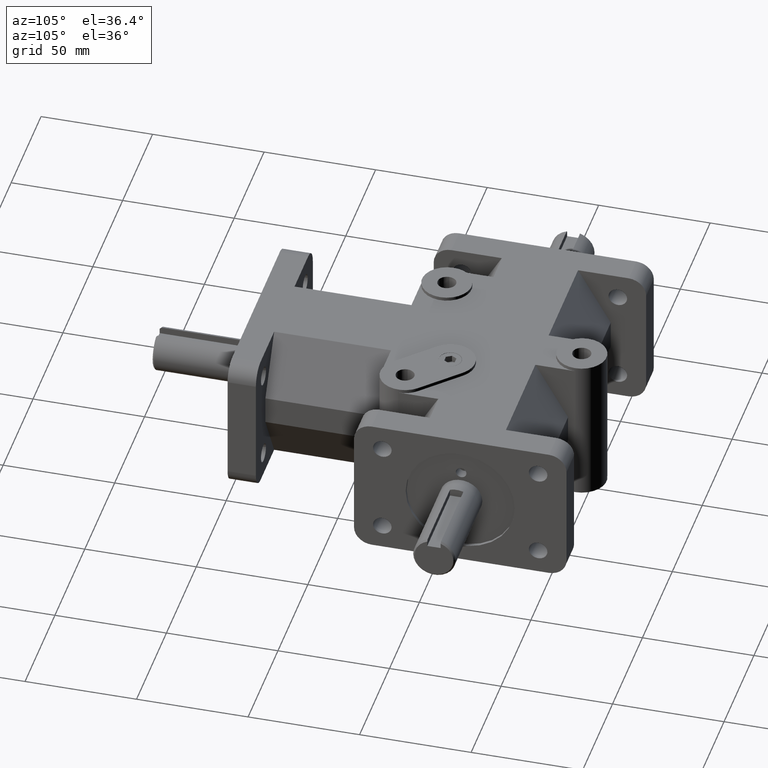
[diagram: clean part render]
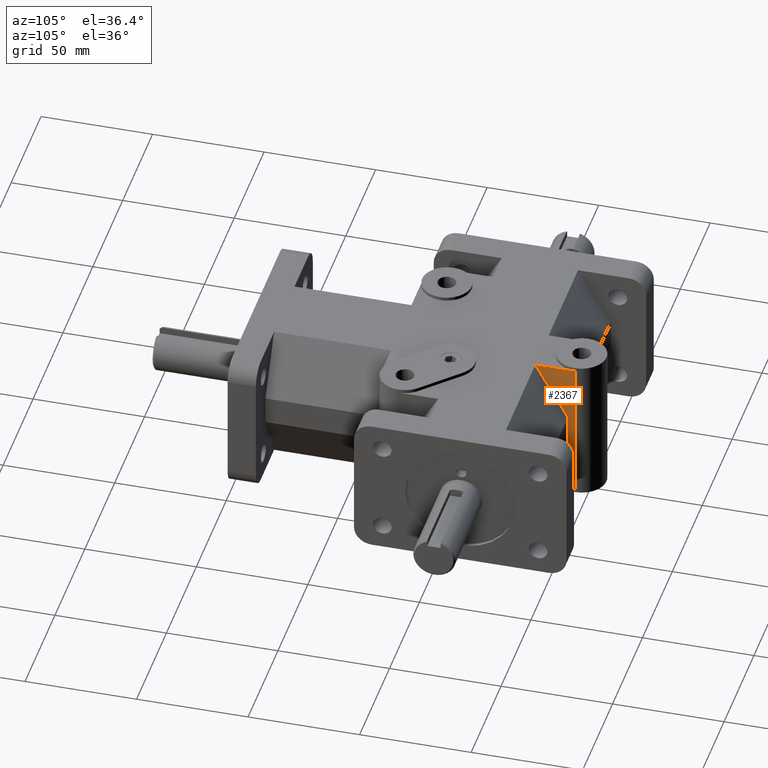
[diagram: same view with one face highlighted and labeled with its STEP entity id]
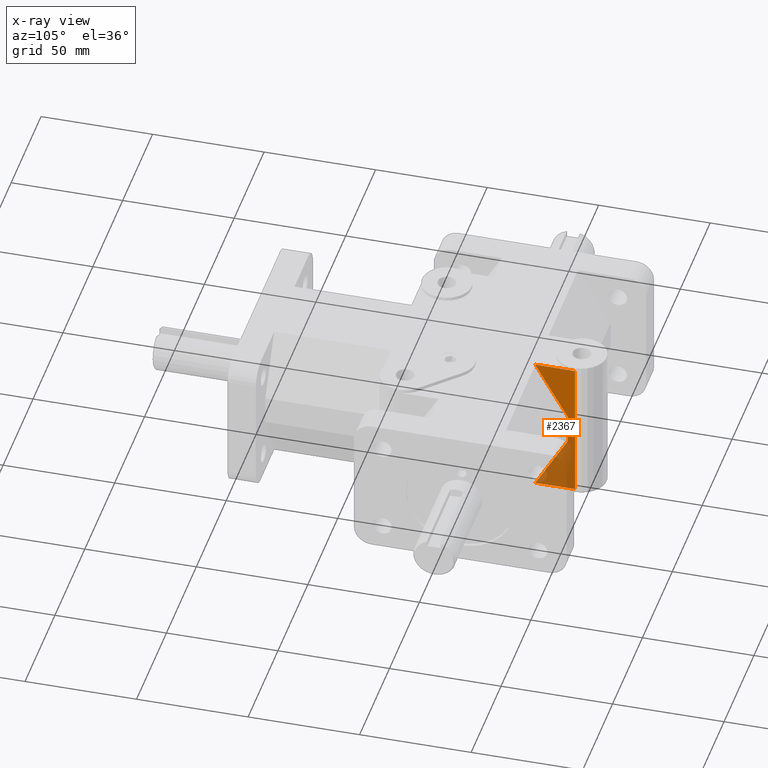
[diagram: x-ray of the same camera — body ghosted, the highlighted face saturated]
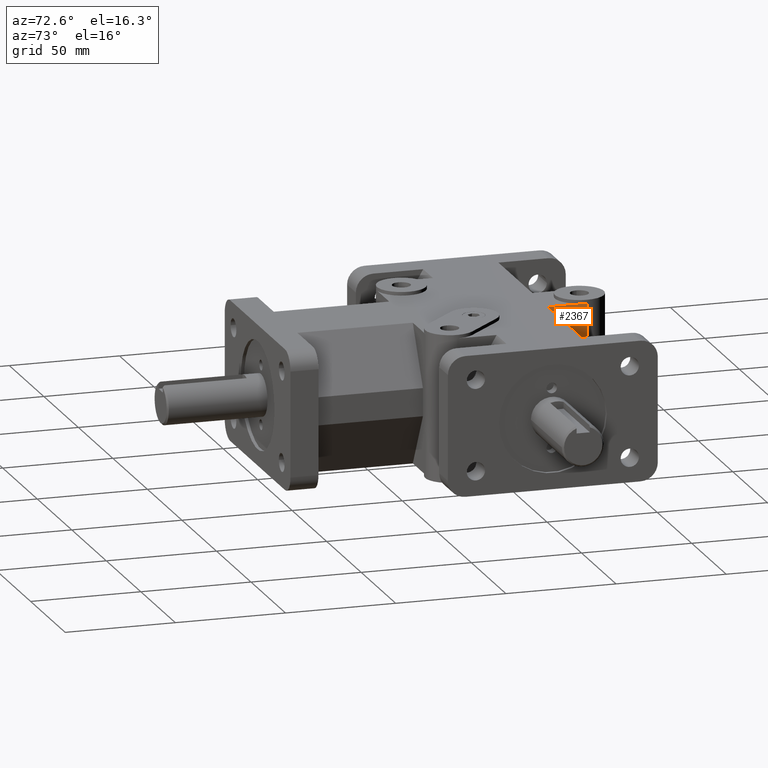
[diagram: same view with one face highlighted and labeled with its STEP entity id]
A machine part, auxiliary view. The second image highlights one B-rep face of the part: STEP entity #2367.
The next image is the same camera in x-ray: the body ghosted, the highlighted face saturated — about 43% of this face is hidden behind the body in this view.
A second angle (auxiliary view) of the same face is appended — the face is thin or edge-on in the first view.
In plain terms, the highlighted planar face has unit normal (1, 0, 0).
Its self-contained STEP definition (entity closure, byte-faithful):
#121=PLANE('',#2616);
#248=FACE_OUTER_BOUND('',#405,.T.);
#405=EDGE_LOOP('',(#2059,#2060,#2061,#2062,#2063,#2064));
#555=LINE('',#3724,#777);
#558=LINE('',#3730,#780);
#640=LINE('',#3965,#862);
#642=LINE('',#3969,#864);
#650=LINE('',#3984,#872);
#651=LINE('',#3985,#873);
#777=VECTOR('',#2994,1.);
#780=VECTOR('',#2999,1.);
#862=VECTOR('',#3239,1.);
#864=VECTOR('',#3243,1.);
#872=VECTOR('',#3257,1.);
#873=VECTOR('',#3258,1.);
#1140=VERTEX_POINT('',#3721);
#1141=VERTEX_POINT('',#3723);
#1142=VERTEX_POINT('',#3727);
#1143=VERTEX_POINT('',#3729);
#1217=VERTEX_POINT('',#3964);
#1218=VERTEX_POINT('',#3968);
#1403=EDGE_CURVE('',#1141,#1140,#555,.T.);
#1406=EDGE_CURVE('',#1143,#1142,#558,.T.);
#1523=EDGE_CURVE('',#1141,#1217,#640,.F.);
#1525=EDGE_CURVE('',#1218,#1142,#642,.F.);
#1533=EDGE_CURVE('',#1143,#1140,#650,.T.);
#1534=EDGE_CURVE('',#1217,#1218,#651,.T.);
#2059=ORIENTED_EDGE('',*,*,#1403,.T.);
#2060=ORIENTED_EDGE('',*,*,#1533,.F.);
#2061=ORIENTED_EDGE('',*,*,#1406,.T.);
#2062=ORIENTED_EDGE('',*,*,#1525,.F.);
#2063=ORIENTED_EDGE('',*,*,#1534,.F.);
#2064=ORIENTED_EDGE('',*,*,#1523,.F.);
#2367=ADVANCED_FACE('',(#248),#121,.T.);
#2616=AXIS2_PLACEMENT_3D('',#3983,#3255,#3256);
#2994=DIRECTION('',(0.,1.,0.));
#2999=DIRECTION('',(0.,-1.,0.));
#3239=DIRECTION('',(0.,-0.499999825156179,-0.866025504730542));
#3243=DIRECTION('',(0.,0.499999825156179,-0.866025504730542));
#3255=DIRECTION('center_axis',(1.,0.,0.));
#3256=DIRECTION('ref_axis',(0.,-1.,0.));
#3257=DIRECTION('',(0.,0.,-1.));
#3258=DIRECTION('',(0.,0.,1.));
#3721=CARTESIAN_POINT('',(11.1125,146.05,-31.75));
#3723=CARTESIAN_POINT('',(11.1125,128.21031,-31.75));
#3724=CARTESIAN_POINT('',(11.1125,142.875,-31.75));
#3727=CARTESIAN_POINT('',(11.1125,128.21031,31.75));
#3729=CARTESIAN_POINT('',(11.1125,146.05,31.75));
#3730=CARTESIAN_POINT('',(11.1125,112.837452872698,31.75));
#3964=CARTESIAN_POINT('',(11.1125,142.875,-6.35));
#3965=CARTESIAN_POINT('',(11.1125,140.583642508004,-10.318749444871));
#3968=CARTESIAN_POINT('',(11.1125,142.875,6.35));
#3969=CARTESIAN_POINT('',(11.1125,140.583642508004,10.318749444871));
#3983=CARTESIAN_POINT('Origin',(11.1125,142.875,0.));
#3984=CARTESIAN_POINT('',(11.1125,146.05,0.));
#3985=CARTESIAN_POINT('',(11.1125,142.875,0.));